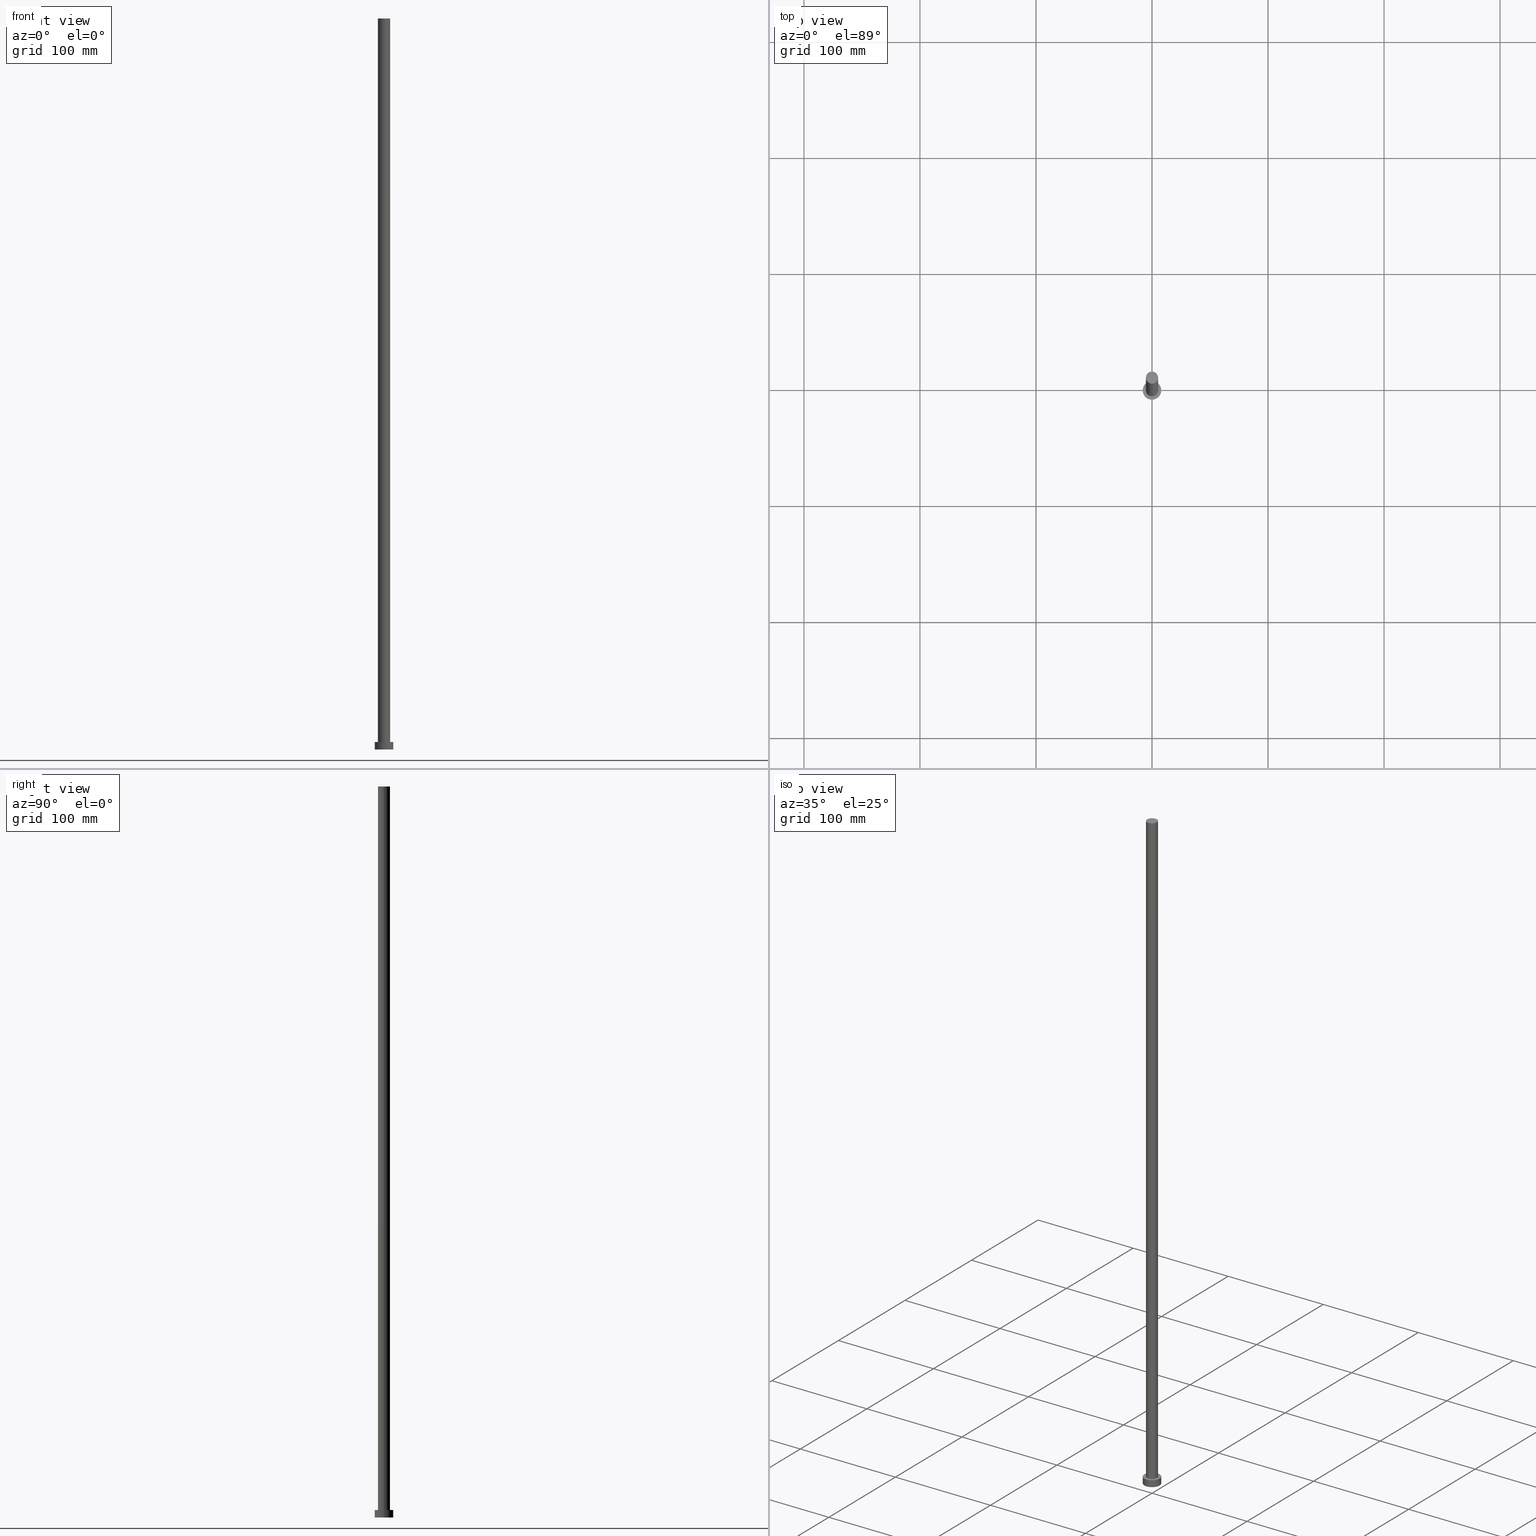
[diagram: canonical four-view strip — front | top / right | iso, engineering-drawing reading convention]
A machine part, canonical four-view strip (front | top / right | iso — engineering-drawing reading convention). The complete STEP part file that produces these views, byte-faithful:
ISO-10303-21;
HEADER;
FILE_DESCRIPTION (( 'STEP AP203' ),
    '1' );
FILE_NAME ('2971.STEP',
    '2023-02-13T12:21:10',
    ( '' ),
    ( '' ),
    'SwSTEP 2.0',
    'SolidWorks 2019',
    '' );
FILE_SCHEMA (( 'CONFIG_CONTROL_DESIGN' ));
ENDSEC;

DATA;
#1 = CARTESIAN_POINT ( 'NONE',  ( 5.250000000000000888, 6.429395695523604153E-16, 630.0000000000000000 ) ) ;
#2 = ORIENTED_EDGE ( 'NONE', *, *, #246, .F. ) ;
#3 = EDGE_LOOP ( 'NONE', ( #88, #26, #24, #72 ) ) ;
#4 = EDGE_CURVE ( 'NONE', #92, #153, #171, .T. ) ;
#5 = CARTESIAN_POINT ( 'NONE',  ( 0.000000000000000000, 0.000000000000000000, 630.0000000000000000 ) ) ;
#6 = AXIS2_PLACEMENT_3D ( 'NONE', #247, #157, #61 ) ;
#7 = DIRECTION ( 'NONE',  ( 0.000000000000000000, 0.000000000000000000, 1.000000000000000000 ) ) ;
#8 = MANIFOLD_SOLID_BREP ( 'P�idat vysunut�m3', #186 ) ;
#9 = DIRECTION ( 'NONE',  ( 0.000000000000000000, 0.000000000000000000, 1.000000000000000000 ) ) ;
#10 = CC_DESIGN_PERSON_AND_ORGANIZATION_ASSIGNMENT ( #219, #193, ( #199 ) ) ;
#11 = DIRECTION ( 'NONE',  ( 1.000000000000000000, 0.000000000000000000, 0.000000000000000000 ) ) ;
#12 = LOCAL_TIME ( 13, 21, 10.00000000000000000, #166 ) ;
#13 = FACE_OUTER_BOUND ( 'NONE', #191, .T. ) ;
#14 = CYLINDRICAL_SURFACE ( 'NONE', #104, 5.250000000000000888 ) ;
#15 = PERSON_AND_ORGANIZATION ( #194, #87 ) ;
#16 = AXIS2_PLACEMENT_3D ( 'NONE', #209, #9, #138 ) ;
#17 = PERSON_AND_ORGANIZATION ( #194, #87 ) ;
#18 = APPLICATION_PROTOCOL_DEFINITION ( 'international standard', 'config_control_design', 1994, #99 ) ;
#19 = ADVANCED_FACE ( 'NONE', ( #54 ), #198, .F. ) ;
#20 = ORIENTED_EDGE ( 'NONE', *, *, #62, .T. ) ;
#21 = LINE ( 'NONE', #89, #122 ) ;
#22 = CALENDAR_DATE ( 2023, 13, 2 ) ;
#23 = APPLICATION_CONTEXT ( 'configuration controlled 3d designs of mechanical parts and assemblies' ) ;
#24 = ORIENTED_EDGE ( 'NONE', *, *, #129, .T. ) ;
#25 = EDGE_CURVE ( 'NONE', #202, #177, #230, .T. ) ;
#26 = ORIENTED_EDGE ( 'NONE', *, *, #141, .T. ) ;
#27 = DIRECTION ( 'NONE',  ( 1.000000000000000000, 0.000000000000000000, -0.000000000000000000 ) ) ;
#28 = APPROVAL_PERSON_ORGANIZATION ( #15, #178, #168 ) ;
#29 = CARTESIAN_POINT ( 'NONE',  ( 5.250000000000000888, 6.429395695523604153E-16, 630.0000000000000000 ) ) ;
#30 = LINE ( 'NONE', #29, #215 ) ;
#31 = CYLINDRICAL_SURFACE ( 'NONE', #226, 8.000000000000000000 ) ;
#32 = COORDINATED_UNIVERSAL_TIME_OFFSET ( 1, 0, .AHEAD. ) ;
#33 = APPROVAL_STATUS ( 'not_yet_approved' ) ;
#34 = AXIS2_PLACEMENT_3D ( 'NONE', #154, #218, #59 ) ;
#35 = VECTOR ( 'NONE', #187, 1000.000000000000000 ) ;
#36 = CC_DESIGN_PERSON_AND_ORGANIZATION_ASSIGNMENT ( #210, #152, ( #51 ) ) ;
#37 = DATE_AND_TIME ( #115, #181 ) ;
#38 = ORIENTED_EDGE ( 'NONE', *, *, #197, .F. ) ;
#39 = ORIENTED_EDGE ( 'NONE', *, *, #4, .T. ) ;
#40 = CARTESIAN_POINT ( 'NONE',  ( 0.000000000000000000, 0.000000000000000000, 630.0000000000000000 ) ) ;
#41 = EDGE_LOOP ( 'NONE', ( #255, #38, #221, #251 ) ) ;
#42 = VERTEX_POINT ( 'NONE', #119 ) ;
#43 = EDGE_LOOP ( 'NONE', ( #179, #137, #20, #2 ) ) ;
#44 = DIRECTION ( 'NONE',  ( -0.000000000000000000, -0.000000000000000000, -1.000000000000000000 ) ) ;
#45 = ADVANCED_BREP_SHAPE_REPRESENTATION ( '2971', ( #8, #253 ), #91 ) ;
#46 = AXIS2_PLACEMENT_3D ( 'NONE', #98, #7, #50 ) ;
#47 = CARTESIAN_POINT ( 'NONE',  ( 5.250000000000000888, 6.429395695523604153E-16, 6.500000000000000000 ) ) ;
#48 = CARTESIAN_POINT ( 'NONE',  ( 0.000000000000000000, 0.000000000000000000, 6.500000000000000000 ) ) ;
#49 = CARTESIAN_POINT ( 'NONE',  ( 0.000000000000000000, 0.000000000000000000, 6.500000000000000000 ) ) ;
#50 = DIRECTION ( 'NONE',  ( 1.000000000000000000, 0.000000000000000000, 0.000000000000000000 ) ) ;
#51 = PRODUCT_DEFINITION_FORMATION_WITH_SPECIFIED_SOURCE ( 'LIBOVOLN�', '', #199, .NOT_KNOWN. ) ;
#52 = DATE_AND_TIME ( #248, #249 ) ;
#53 = DATE_AND_TIME ( #22, #12 ) ;
#54 = FACE_OUTER_BOUND ( 'NONE', #243, .T. ) ;
#55 = DIRECTION ( 'NONE',  ( -0.000000000000000000, -0.000000000000000000, -1.000000000000000000 ) ) ;
#56 = ADVANCED_FACE ( 'NONE', ( #77 ), #156, .T. ) ;
#57 = DIRECTION ( 'NONE',  ( 0.000000000000000000, 0.000000000000000000, 1.000000000000000000 ) ) ;
#58 = LOCAL_TIME ( 13, 21, 10.00000000000000000, #128 ) ;
#59 = DIRECTION ( 'NONE',  ( 1.000000000000000000, 0.000000000000000000, 0.000000000000000000 ) ) ;
#60 = PLANE ( 'NONE',  #16 ) ;
#61 = DIRECTION ( 'NONE',  ( -1.000000000000000000, 0.000000000000000000, 0.000000000000000000 ) ) ;
#62 = EDGE_CURVE ( 'NONE', #238, #110, #112, .T. ) ;
#63 =( NAMED_UNIT ( * ) PLANE_ANGLE_UNIT ( ) SI_UNIT ( $, .RADIAN. ) );
#64 = AXIS2_PLACEMENT_3D ( 'NONE', #48, #227, #100 ) ;
#65 = APPROVAL ( #33, 'NEUR�EN�' ) ;
#66 = CARTESIAN_POINT ( 'NONE',  ( -5.250000000000000888, 0.000000000000000000, 6.500000000000000000 ) ) ;
#67 = AXIS2_PLACEMENT_3D ( 'NONE', #163, #229, #206 ) ;
#68 = DIRECTION ( 'NONE',  ( 0.000000000000000000, 0.000000000000000000, 1.000000000000000000 ) ) ;
#69 = EDGE_CURVE ( 'NONE', #86, #238, #21, .T. ) ;
#70 = CIRCLE ( 'NONE', #102, 8.000000000000000000 ) ;
#71 = ORIENTED_EDGE ( 'NONE', *, *, #212, .T. ) ;
#72 = ORIENTED_EDGE ( 'NONE', *, *, #174, .F. ) ;
#73 = PERSON_AND_ORGANIZATION_ROLE ( 'classification_officer' ) ;
#74 = CC_DESIGN_DATE_AND_TIME_ASSIGNMENT ( #53, #239, ( #101 ) ) ;
#75 = DIRECTION ( 'NONE',  ( 1.000000000000000000, 0.000000000000000000, 0.000000000000000000 ) ) ;
#76 = DIRECTION ( 'NONE',  ( -0.000000000000000000, -0.000000000000000000, -1.000000000000000000 ) ) ;
#77 = FACE_OUTER_BOUND ( 'NONE', #240, .T. ) ;
#78 = CC_DESIGN_PERSON_AND_ORGANIZATION_ASSIGNMENT ( #200, #73, ( #96 ) ) ;
#79 = LINE ( 'NONE', #245, #108 ) ;
#80 = CARTESIAN_POINT ( 'NONE',  ( 0.000000000000000000, 0.000000000000000000, 630.0000000000000000 ) ) ;
#81 = APPROVAL_PERSON_ORGANIZATION ( #17, #123, #146 ) ;
#82 = PRODUCT_RELATED_PRODUCT_CATEGORY ( 'detail', '', ( #199 ) ) ;
#83 = PLANE ( 'NONE',  #131 ) ;
#84 = CALENDAR_DATE ( 2023, 13, 2 ) ;
#85 = CALENDAR_DATE ( 2023, 13, 2 ) ;
#86 = VERTEX_POINT ( 'NONE', #113 ) ;
#87 = ORGANIZATION ( 'NEUR�EN�', 'NEUR�EN�', '' ) ;
#88 = ORIENTED_EDGE ( 'NONE', *, *, #4, .F. ) ;
#89 = CARTESIAN_POINT ( 'NONE',  ( 8.000000000000000000, 9.797174393178823685E-16, 6.500000000000000000 ) ) ;
#90 = COORDINATED_UNIVERSAL_TIME_OFFSET ( 1, 0, .AHEAD. ) ;
#91 =( GEOMETRIC_REPRESENTATION_CONTEXT ( 3 ) GLOBAL_UNCERTAINTY_ASSIGNED_CONTEXT ( ( #213 ) ) GLOBAL_UNIT_ASSIGNED_CONTEXT ( ( #205, #63, #228 ) ) REPRESENTATION_CONTEXT ( 'NONE', 'WORKASPACE' ) );
#92 = VERTEX_POINT ( 'NONE', #1 ) ;
#93 = ORIENTED_EDGE ( 'NONE', *, *, #129, .F. ) ;
#94 = CARTESIAN_POINT ( 'NONE',  ( 0.000000000000000000, 0.000000000000000000, 6.500000000000000000 ) ) ;
#95 = CC_DESIGN_PERSON_AND_ORGANIZATION_ASSIGNMENT ( #214, #237, ( #101 ) ) ;
#96 = SECURITY_CLASSIFICATION ( '', '', #190 ) ;
#97 = CYLINDRICAL_SURFACE ( 'NONE', #6, 8.000000000000000000 ) ;
#98 = CARTESIAN_POINT ( 'NONE',  ( 0.000000000000000000, 0.000000000000000000, 0.000000000000000000 ) ) ;
#99 = APPLICATION_CONTEXT ( 'configuration controlled 3d designs of mechanical parts and assemblies' ) ;
#100 = DIRECTION ( 'NONE',  ( 1.000000000000000000, 0.000000000000000000, 0.000000000000000000 ) ) ;
#101 = PRODUCT_DEFINITION ( 'NEZN�M�', '', #51, #109 ) ;
#102 = AXIS2_PLACEMENT_3D ( 'NONE', #49, #162, #223 ) ;
#103 = CARTESIAN_POINT ( 'NONE',  ( 0.000000000000000000, 0.000000000000000000, 630.0000000000000000 ) ) ;
#104 = AXIS2_PLACEMENT_3D ( 'NONE', #80, #44, #124 ) ;
#105 = FACE_OUTER_BOUND ( 'NONE', #3, .T. ) ;
#106 = APPROVAL_STATUS ( 'not_yet_approved' ) ;
#107 = SHAPE_DEFINITION_REPRESENTATION ( #158, #45 ) ;
#108 = VECTOR ( 'NONE', #183, 1000.000000000000000 ) ;
#109 = DESIGN_CONTEXT ( 'detailed design', #23, 'design' ) ;
#110 = VERTEX_POINT ( 'NONE', #135 ) ;
#111 = EDGE_CURVE ( 'NONE', #86, #42, #70, .T. ) ;
#112 = CIRCLE ( 'NONE', #34, 8.000000000000000000 ) ;
#113 = CARTESIAN_POINT ( 'NONE',  ( 8.000000000000000000, 9.797174393178823685E-16, 6.500000000000000000 ) ) ;
#114 = CARTESIAN_POINT ( 'NONE',  ( 0.000000000000000000, 0.000000000000000000, 0.000000000000000000 ) ) ;
#115 = CALENDAR_DATE ( 2023, 13, 2 ) ;
#116 = ADVANCED_FACE ( 'NONE', ( #125, #13 ), #60, .T. ) ;
#117 = ORIENTED_EDGE ( 'NONE', *, *, #141, .F. ) ;
#118 = CC_DESIGN_APPROVAL ( #123, ( #101 ) ) ;
#119 = CARTESIAN_POINT ( 'NONE',  ( -8.000000000000000000, 0.000000000000000000, 6.500000000000000000 ) ) ;
#120 = ORIENTED_EDGE ( 'NONE', *, *, #25, .T. ) ;
#121 = DIRECTION ( 'NONE',  ( -1.000000000000000000, 0.000000000000000000, 0.000000000000000000 ) ) ;
#122 = VECTOR ( 'NONE', #55, 1000.000000000000000 ) ;
#123 = APPROVAL ( #170, 'NEUR�EN�' ) ;
#124 = DIRECTION ( 'NONE',  ( -1.000000000000000000, 0.000000000000000000, 0.000000000000000000 ) ) ;
#125 = FACE_BOUND ( 'NONE', #196, .T. ) ;
#126 = CIRCLE ( 'NONE', #67, 5.250000000000000888 ) ;
#127 = FACE_OUTER_BOUND ( 'NONE', #43, .T. ) ;
#128 = COORDINATED_UNIVERSAL_TIME_OFFSET ( 1, 0, .AHEAD. ) ;
#129 = EDGE_CURVE ( 'NONE', #177, #202, #126, .T. ) ;
#130 = MECHANICAL_CONTEXT ( 'NONE', #99, 'mechanical' ) ;
#131 = AXIS2_PLACEMENT_3D ( 'NONE', #207, #164, #27 ) ;
#132 = PERSON_AND_ORGANIZATION ( #194, #87 ) ;
#133 = DIRECTION ( 'NONE',  ( 1.000000000000000000, 0.000000000000000000, -0.000000000000000000 ) ) ;
#134 = DIRECTION ( 'NONE',  ( 1.000000000000000000, 0.000000000000000000, 0.000000000000000000 ) ) ;
#135 = CARTESIAN_POINT ( 'NONE',  ( -8.000000000000000000, 0.000000000000000000, 0.000000000000000000 ) ) ;
#136 = AXIS2_PLACEMENT_3D ( 'NONE', #114, #57, #133 ) ;
#137 = ORIENTED_EDGE ( 'NONE', *, *, #69, .T. ) ;
#138 = DIRECTION ( 'NONE',  ( 1.000000000000000000, 0.000000000000000000, -0.000000000000000000 ) ) ;
#139 = CARTESIAN_POINT ( 'NONE',  ( -8.000000000000000000, 0.000000000000000000, 6.500000000000000000 ) ) ;
#140 = AXIS2_PLACEMENT_3D ( 'NONE', #94, #217, #134 ) ;
#141 = EDGE_CURVE ( 'NONE', #92, #177, #30, .T. ) ;
#142 = AXIS2_PLACEMENT_3D ( 'NONE', #103, #185, #11 ) ;
#143 = CARTESIAN_POINT ( 'NONE',  ( 8.000000000000000000, 9.797174393178823685E-16, 0.000000000000000000 ) ) ;
#144 = DIRECTION ( 'NONE',  ( -0.000000000000000000, -0.000000000000000000, -1.000000000000000000 ) ) ;
#145 = DATE_TIME_ROLE ( 'classification_date' ) ;
#146 = APPROVAL_ROLE ( '' ) ;
#147 = APPLICATION_PROTOCOL_DEFINITION ( 'international standard', 'config_control_design', 1994, #23 ) ;
#148 = APPROVAL_DATE_TIME ( #232, #123 ) ;
#149 = CIRCLE ( 'NONE', #46, 8.000000000000000000 ) ;
#150 = DIRECTION ( 'NONE',  ( 0.000000000000000000, 0.000000000000000000, 1.000000000000000000 ) ) ;
#151 = CIRCLE ( 'NONE', #64, 8.000000000000000000 ) ;
#152 = PERSON_AND_ORGANIZATION_ROLE ( 'design_supplier' ) ;
#153 = VERTEX_POINT ( 'NONE', #189 ) ;
#154 = CARTESIAN_POINT ( 'NONE',  ( 0.000000000000000000, 0.000000000000000000, 0.000000000000000000 ) ) ;
#155 = EDGE_CURVE ( 'NONE', #110, #238, #149, .T. ) ;
#156 = CYLINDRICAL_SURFACE ( 'NONE', #165, 5.250000000000000888 ) ;
#157 = DIRECTION ( 'NONE',  ( -0.000000000000000000, -0.000000000000000000, -1.000000000000000000 ) ) ;
#158 = PRODUCT_DEFINITION_SHAPE ( 'NONE', 'NONE',  #101 ) ;
#159 = FACE_OUTER_BOUND ( 'NONE', #41, .T. ) ;
#160 = ADVANCED_FACE ( 'NONE', ( #127 ), #31, .T. ) ;
#161 = CIRCLE ( 'NONE', #142, 5.250000000000000888 ) ;
#162 = DIRECTION ( 'NONE',  ( 0.000000000000000000, 0.000000000000000000, 1.000000000000000000 ) ) ;
#163 = CARTESIAN_POINT ( 'NONE',  ( 0.000000000000000000, 0.000000000000000000, 6.500000000000000000 ) ) ;
#164 = DIRECTION ( 'NONE',  ( 0.000000000000000000, 0.000000000000000000, 1.000000000000000000 ) ) ;
#165 = AXIS2_PLACEMENT_3D ( 'NONE', #40, #76, #242 ) ;
#166 = COORDINATED_UNIVERSAL_TIME_OFFSET ( 1, 0, .AHEAD. ) ;
#167 = ORIENTED_EDGE ( 'NONE', *, *, #155, .F. ) ;
#168 = APPROVAL_ROLE ( '' ) ;
#169 = ORIENTED_EDGE ( 'NONE', *, *, #174, .T. ) ;
#170 = APPROVAL_STATUS ( 'not_yet_approved' ) ;
#171 = CIRCLE ( 'NONE', #224, 5.250000000000000888 ) ;
#172 = PERSON_AND_ORGANIZATION ( #194, #87 ) ;
#173 = CC_DESIGN_APPROVAL ( #178, ( #96 ) ) ;
#174 = EDGE_CURVE ( 'NONE', #153, #202, #79, .T. ) ;
#175 = ORIENTED_EDGE ( 'NONE', *, *, #111, .T. ) ;
#176 = ORIENTED_EDGE ( 'NONE', *, *, #197, .T. ) ;
#177 = VERTEX_POINT ( 'NONE', #47 ) ;
#178 = APPROVAL ( #106, 'NEUR�EN�' ) ;
#179 = ORIENTED_EDGE ( 'NONE', *, *, #111, .F. ) ;
#180 = ORIENTED_EDGE ( 'NONE', *, *, #62, .F. ) ;
#181 = LOCAL_TIME ( 13, 21, 10.00000000000000000, #252 ) ;
#182 = CC_DESIGN_SECURITY_CLASSIFICATION ( #96, ( #51 ) ) ;
#183 = DIRECTION ( 'NONE',  ( -0.000000000000000000, -0.000000000000000000, -1.000000000000000000 ) ) ;
#184 = FACE_OUTER_BOUND ( 'NONE', #241, .T. ) ;
#185 = DIRECTION ( 'NONE',  ( 0.000000000000000000, 0.000000000000000000, 1.000000000000000000 ) ) ;
#186 = CLOSED_SHELL ( 'NONE', ( #201, #160, #208, #116, #19, #56, #204 ) ) ;
#187 = DIRECTION ( 'NONE',  ( -0.000000000000000000, -0.000000000000000000, -1.000000000000000000 ) ) ;
#188 = CC_DESIGN_DATE_AND_TIME_ASSIGNMENT ( #52, #145, ( #96 ) ) ;
#189 = CARTESIAN_POINT ( 'NONE',  ( -5.250000000000000888, 0.000000000000000000, 630.0000000000000000 ) ) ;
#190 = SECURITY_CLASSIFICATION_LEVEL ( 'unclassified' ) ;
#191 = EDGE_LOOP ( 'NONE', ( #176, #175 ) ) ;
#192 = CARTESIAN_POINT ( 'NONE',  ( 0.000000000000000000, 0.000000000000000000, 0.000000000000000000 ) ) ;
#193 = PERSON_AND_ORGANIZATION_ROLE ( 'design_owner' ) ;
#194 = PERSON ( 'NEUR�EN�', 'NEUR�EN�', 'NEUR�EN�', ('NEUR�EN�'), ('NEUR�EN�'), ('NEUR�EN�') ) ;
#195 = APPROVAL_DATE_TIME ( #37, #65 ) ;
#196 = EDGE_LOOP ( 'NONE', ( #234, #93 ) ) ;
#197 = EDGE_CURVE ( 'NONE', #42, #86, #151, .T. ) ;
#198 = PLANE ( 'NONE',  #136 ) ;
#199 = PRODUCT ( '2971', '2971', '', ( #130 ) ) ;
#200 = PERSON_AND_ORGANIZATION ( #194, #87 ) ;
#201 = ADVANCED_FACE ( 'NONE', ( #105 ), #14, .T. ) ;
#202 = VERTEX_POINT ( 'NONE', #66 ) ;
#203 = DIRECTION ( 'NONE',  ( -0.000000000000000000, -0.000000000000000000, -1.000000000000000000 ) ) ;
#204 = ADVANCED_FACE ( 'NONE', ( #184 ), #83, .T. ) ;
#205 =( LENGTH_UNIT ( ) NAMED_UNIT ( * ) SI_UNIT ( .MILLI., .METRE. ) );
#206 = DIRECTION ( 'NONE',  ( 1.000000000000000000, 0.000000000000000000, 0.000000000000000000 ) ) ;
#207 = CARTESIAN_POINT ( 'NONE',  ( 0.000000000000000000, 0.000000000000000000, 630.0000000000000000 ) ) ;
#208 = ADVANCED_FACE ( 'NONE', ( #159 ), #97, .T. ) ;
#209 = CARTESIAN_POINT ( 'NONE',  ( 0.000000000000000000, 0.000000000000000000, 6.500000000000000000 ) ) ;
#210 = PERSON_AND_ORGANIZATION ( #194, #87 ) ;
#211 = APPROVAL_DATE_TIME ( #250, #178 ) ;
#212 = EDGE_CURVE ( 'NONE', #153, #92, #161, .T. ) ;
#213 = UNCERTAINTY_MEASURE_WITH_UNIT (LENGTH_MEASURE( 1.000000000000000082E-05 ), #205, 'distance_accuracy_value', 'NONE');
#214 = PERSON_AND_ORGANIZATION ( #194, #87 ) ;
#215 = VECTOR ( 'NONE', #203, 1000.000000000000000 ) ;
#216 = CC_DESIGN_APPROVAL ( #65, ( #51 ) ) ;
#217 = DIRECTION ( 'NONE',  ( 0.000000000000000000, 0.000000000000000000, 1.000000000000000000 ) ) ;
#218 = DIRECTION ( 'NONE',  ( 0.000000000000000000, 0.000000000000000000, 1.000000000000000000 ) ) ;
#219 = PERSON_AND_ORGANIZATION ( #194, #87 ) ;
#220 = CC_DESIGN_PERSON_AND_ORGANIZATION_ASSIGNMENT ( #172, #254, ( #51 ) ) ;
#221 = ORIENTED_EDGE ( 'NONE', *, *, #246, .T. ) ;
#222 = ORIENTED_EDGE ( 'NONE', *, *, #212, .F. ) ;
#223 = DIRECTION ( 'NONE',  ( 1.000000000000000000, 0.000000000000000000, 0.000000000000000000 ) ) ;
#224 = AXIS2_PLACEMENT_3D ( 'NONE', #5, #150, #75 ) ;
#225 = CARTESIAN_POINT ( 'NONE',  ( 0.000000000000000000, 0.000000000000000000, 6.500000000000000000 ) ) ;
#226 = AXIS2_PLACEMENT_3D ( 'NONE', #225, #144, #121 ) ;
#227 = DIRECTION ( 'NONE',  ( 0.000000000000000000, 0.000000000000000000, 1.000000000000000000 ) ) ;
#228 =( NAMED_UNIT ( * ) SI_UNIT ( $, .STERADIAN. ) SOLID_ANGLE_UNIT ( ) );
#229 = DIRECTION ( 'NONE',  ( 0.000000000000000000, 0.000000000000000000, 1.000000000000000000 ) ) ;
#230 = CIRCLE ( 'NONE', #140, 5.250000000000000888 ) ;
#231 = APPROVAL_PERSON_ORGANIZATION ( #132, #65, #233 ) ;
#232 = DATE_AND_TIME ( #85, #236 ) ;
#233 = APPROVAL_ROLE ( '' ) ;
#234 = ORIENTED_EDGE ( 'NONE', *, *, #25, .F. ) ;
#235 = DIRECTION ( 'NONE',  ( 1.000000000000000000, 0.000000000000000000, 0.000000000000000000 ) ) ;
#236 = LOCAL_TIME ( 13, 21, 10.00000000000000000, #32 ) ;
#237 = PERSON_AND_ORGANIZATION_ROLE ( 'creator' ) ;
#238 = VERTEX_POINT ( 'NONE', #143 ) ;
#239 = DATE_TIME_ROLE ( 'creation_date' ) ;
#240 = EDGE_LOOP ( 'NONE', ( #117, #222, #169, #120 ) ) ;
#241 = EDGE_LOOP ( 'NONE', ( #71, #39 ) ) ;
#242 = DIRECTION ( 'NONE',  ( -1.000000000000000000, 0.000000000000000000, 0.000000000000000000 ) ) ;
#243 = EDGE_LOOP ( 'NONE', ( #167, #180 ) ) ;
#244 = LINE ( 'NONE', #139, #35 ) ;
#245 = CARTESIAN_POINT ( 'NONE',  ( -5.250000000000000888, 0.000000000000000000, 630.0000000000000000 ) ) ;
#246 = EDGE_CURVE ( 'NONE', #42, #110, #244, .T. ) ;
#247 = CARTESIAN_POINT ( 'NONE',  ( 0.000000000000000000, 0.000000000000000000, 6.500000000000000000 ) ) ;
#248 = CALENDAR_DATE ( 2023, 13, 2 ) ;
#249 = LOCAL_TIME ( 13, 21, 10.00000000000000000, #90 ) ;
#250 = DATE_AND_TIME ( #84, #58 ) ;
#251 = ORIENTED_EDGE ( 'NONE', *, *, #155, .T. ) ;
#252 = COORDINATED_UNIVERSAL_TIME_OFFSET ( 1, 0, .AHEAD. ) ;
#253 = AXIS2_PLACEMENT_3D ( 'NONE', #192, #68, #235 ) ;
#254 = PERSON_AND_ORGANIZATION_ROLE ( 'creator' ) ;
#255 = ORIENTED_EDGE ( 'NONE', *, *, #69, .F. ) ;
ENDSEC;
END-ISO-10303-21;
